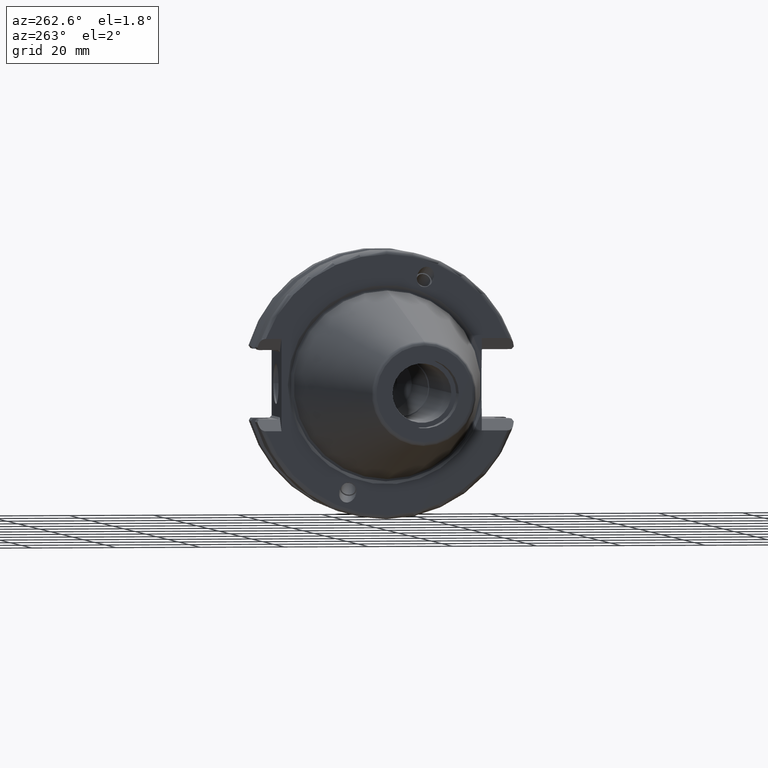
[diagram: clean part render]
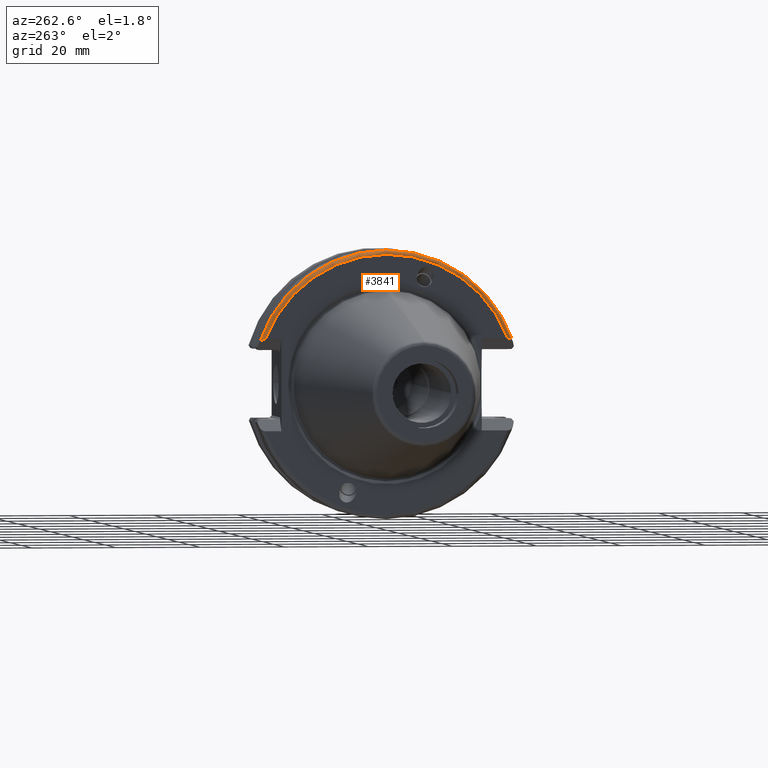
[diagram: same view with one face highlighted and labeled with its STEP entity id]
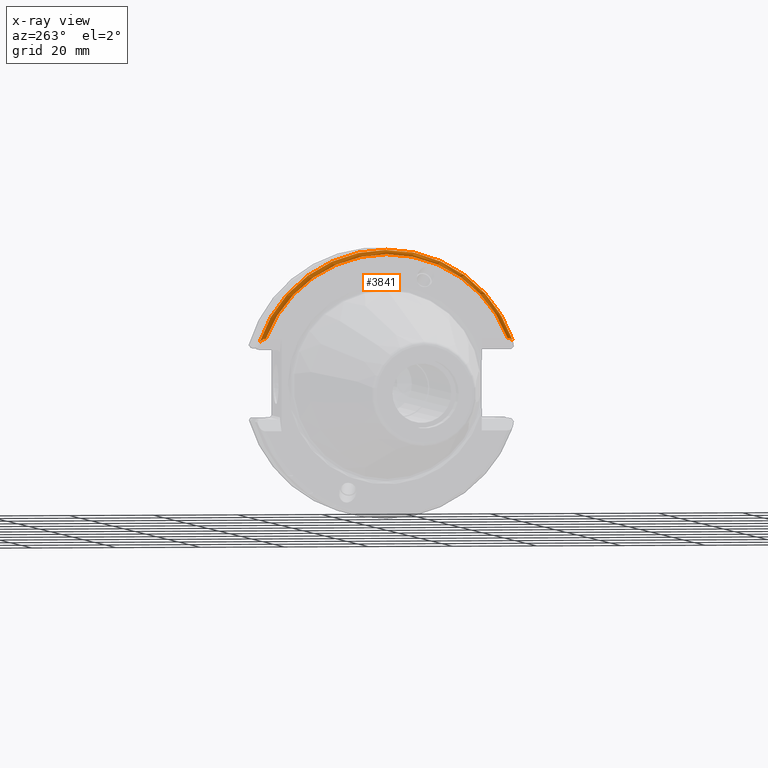
[diagram: x-ray of the same camera — body ghosted, the highlighted face saturated]
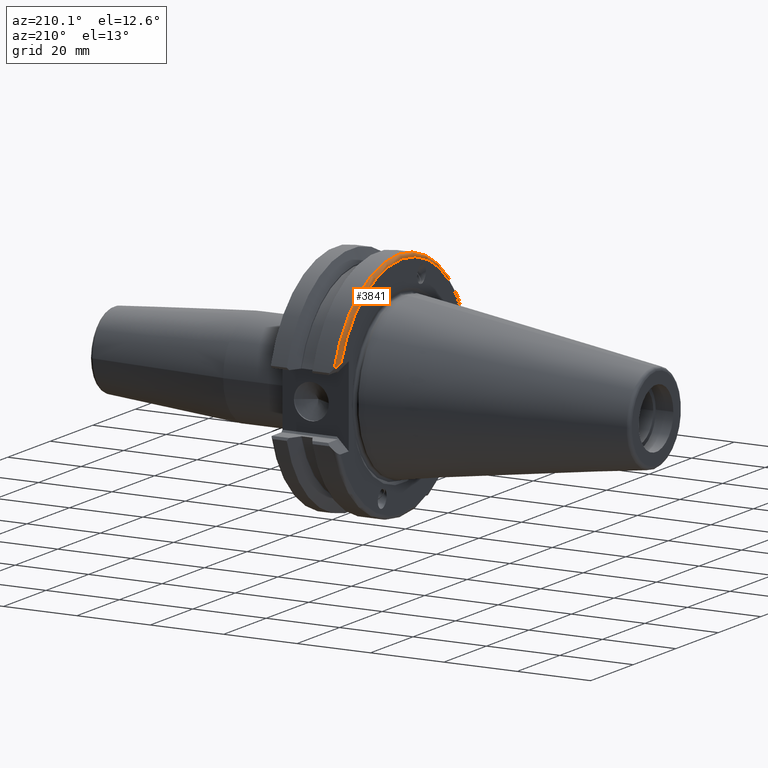
[diagram: same view with one face highlighted and labeled with its STEP entity id]
A machine part, auxiliary view. The second image highlights one B-rep face of the part: STEP entity #3841.
The next image is the same camera in x-ray: the body ghosted, the highlighted face saturated — about 0% of this face is hidden behind the body in this view.
A second angle (auxiliary view) of the same face is appended — the face is thin or edge-on in the first view.
In plain terms, the highlighted toroidal blend (fillet) surface has major radius 30.75 mm and minor (blend) radius 1 mm.
Its self-contained STEP definition (entity closure, byte-faithful):
#1033=CARTESIAN_POINT('',(2.E0,-3.017035631212E1,9.89E0));
#1034=CARTESIAN_POINT('',(1.890338207136E0,-3.013440860503E1,9.999661792864E0));
#1035=CARTESIAN_POINT('',(1.691100429702E0,-3.003135173736E1,1.019889957030E1));
#1036=CARTESIAN_POINT('',(1.442189273476E0,-2.981665561673E1,1.044781072652E1));
#1037=CARTESIAN_POINT('',(1.251459267932E0,-2.957315383139E1,1.063854073207E1));
#1038=CARTESIAN_POINT('',(1.108046641465E0,-2.930456153677E1,1.078195335854E1));
#1039=CARTESIAN_POINT('',(1.018875042163E0,-2.902025008168E1,1.087112495784E1));
#1040=CARTESIAN_POINT('',(1.E0,-2.884392612519E1,1.089E1));
#1041=CARTESIAN_POINT('',(1.E0,-2.875709303807E1,1.089E1));
#1442=CARTESIAN_POINT('',(2.E0,0.E0,0.E0));
#1443=DIRECTION('',(1.E0,0.E0,0.E0));
#1444=DIRECTION('',(0.E0,9.502474429013E-1,3.114960629921E-1));
#1445=AXIS2_PLACEMENT_3D('',#1442,#1443,#1444);
#1447=CARTESIAN_POINT('',(1.E0,0.E0,0.E0));
#1448=DIRECTION('',(-1.E0,0.E0,0.E0));
#1449=DIRECTION('',(0.E0,-9.351900174981E-1,3.541463414634E-1));
#1450=AXIS2_PLACEMENT_3D('',#1447,#1448,#1449);
#1460=CARTESIAN_POINT('',(1.E0,2.875709303807E1,1.089E1));
#1461=CARTESIAN_POINT('',(1.E0,2.884333463608E1,1.089E1));
#1462=CARTESIAN_POINT('',(1.018659956124E0,2.901872777780E1,1.087134004388E1));
#1463=CARTESIAN_POINT('',(1.106842932048E0,2.930153800953E1,1.078315706795E1));
#1464=CARTESIAN_POINT('',(1.249902176078E0,2.957111398582E1,1.064009782392E1));
#1465=CARTESIAN_POINT('',(1.443382121680E0,2.981827496174E1,1.044661787832E1));
#1466=CARTESIAN_POINT('',(1.693910927712E0,3.003320124182E1,1.019608907229E1));
#1467=CARTESIAN_POINT('',(1.891684944533E0,3.013485007256E1,9.998315055467E0));
#1468=CARTESIAN_POINT('',(2.E0,3.017035631212E1,9.89E0));
#1865=VERTEX_POINT('',#1033);
#1866=VERTEX_POINT('',#1041);
#1867=VERTEX_POINT('',#1460);
#1868=VERTEX_POINT('',#1468);
#3829=CARTESIAN_POINT('',(2.E0,0.E0,0.E0));
#3830=DIRECTION('',(1.E0,0.E0,0.E0));
#3831=DIRECTION('',(0.E0,9.999995644445E-1,9.333331978274E-4));
#3832=AXIS2_PLACEMENT_3D('',#3829,#3830,#3831);
#3833=TOROIDAL_SURFACE('',#3832,3.075E1,1.E0);
#3834=ORIENTED_EDGE('',*,*,#3049,.T.);
#3835=ORIENTED_EDGE('',*,*,#3439,.T.);
#3836=ORIENTED_EDGE('',*,*,#2962,.T.);
#3838=ORIENTED_EDGE('',*,*,#3837,.T.);
#3839=EDGE_LOOP('',(#3834,#3835,#3836,#3838));
#3840=FACE_OUTER_BOUND('',#3839,.F.);
#3841=ADVANCED_FACE('',(#3840),#3833,.T.);
#1042=B_SPLINE_CURVE_WITH_KNOTS('',3,(#1033,#1034,#1035,#1036,#1037,#1038,#1039,
#1040,#1041),.UNSPECIFIED.,.F.,.F.,(4,1,1,1,1,1,4),(0.E0,1.666666666667E-1,
3.333333333333E-1,5.E-1,6.666666666667E-1,8.333333333333E-1,1.E0),
.UNSPECIFIED.);
#1446=CIRCLE('',#1445,3.175E1);
#1451=CIRCLE('',#1450,3.075E1);
#1469=B_SPLINE_CURVE_WITH_KNOTS('',3,(#1460,#1461,#1462,#1463,#1464,#1465,#1466,
#1467,#1468),.UNSPECIFIED.,.F.,.F.,(4,1,1,1,1,1,4),(0.E0,1.666666666667E-1,
3.333333333333E-1,5.E-1,6.666666666667E-1,8.333333333333E-1,1.E0),
.UNSPECIFIED.);
#2962=EDGE_CURVE('',#1866,#1867,#1451,.T.);
#3049=EDGE_CURVE('',#1868,#1865,#1446,.T.);
#3439=EDGE_CURVE('',#1865,#1866,#1042,.T.);
#3837=EDGE_CURVE('',#1867,#1868,#1469,.T.);